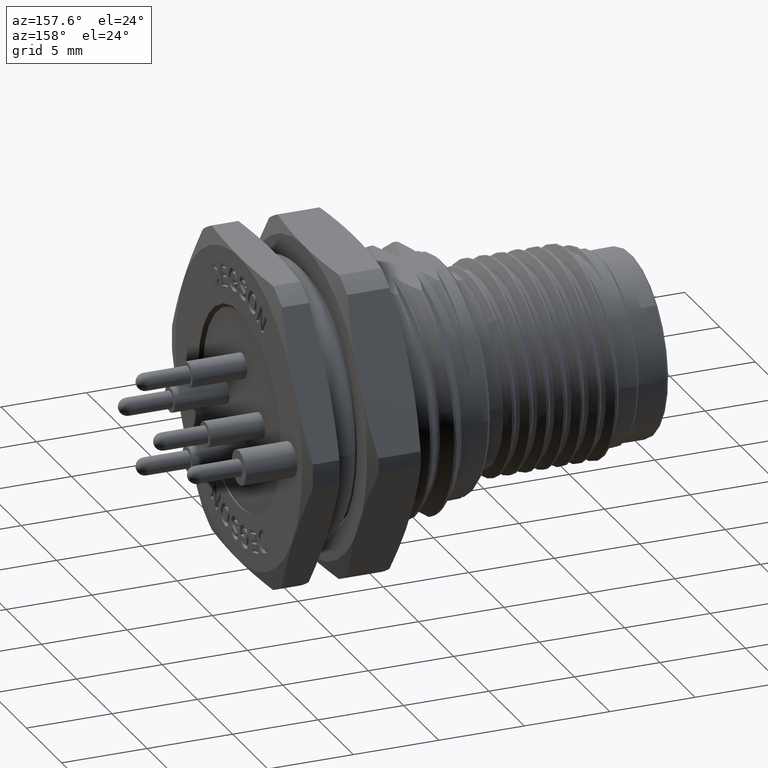
[diagram: clean part render]
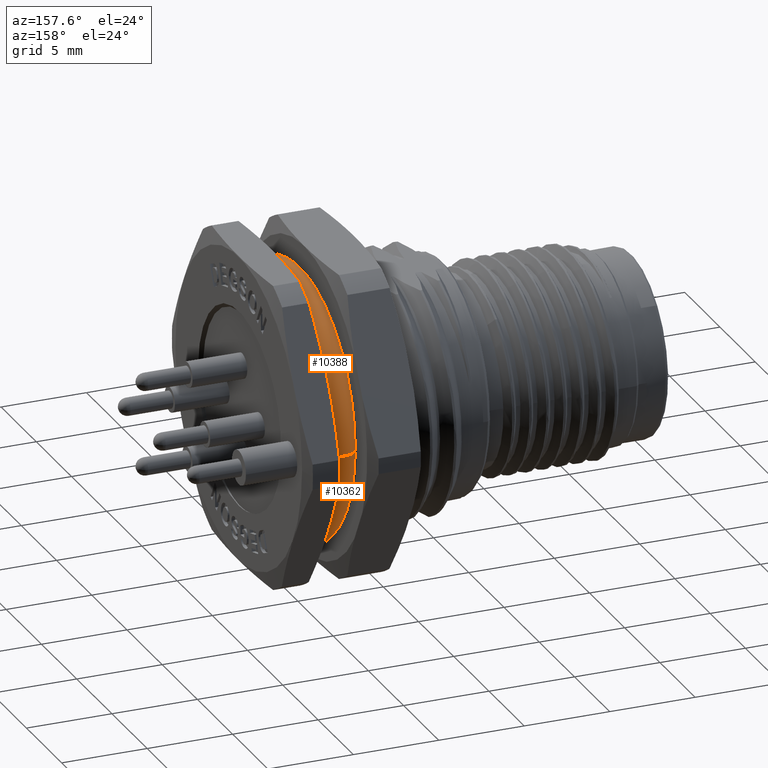
[diagram: same view with one multi-face feature highlighted, each face labeled with its STEP entity id]
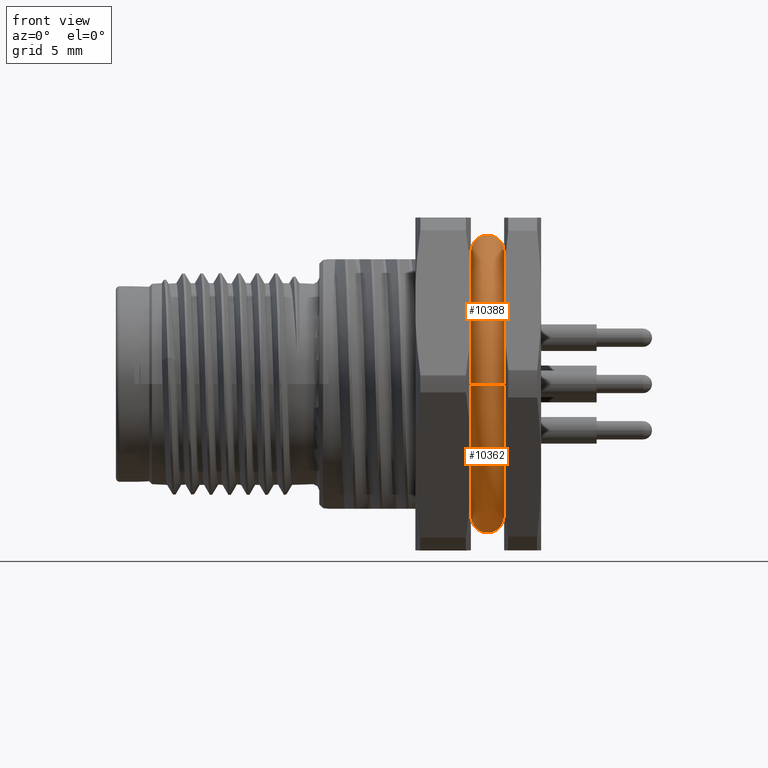
[diagram: same view with one multi-face feature highlighted, each face labeled with its STEP entity id]
A machine part, auxiliary view. The highlighted faces form ONE feature: a constant-radius fillet chain: 2 tangent blend faces with common blend radius 0.9 mm. The faces share edges in the B-rep.
A second angle (front view) of the same feature is appended — it is thin or edge-on in the first view.
Their STEP definitions:
[1] entity #10362 (Torus):
#1217=CARTESIAN_POINT('',(1.939495141735E1,1.886821974979E0,-6.995194330582E0));
#1218=CARTESIAN_POINT('',(1.939629274163E1,1.811637577507E0,-7.002413027099E0));
#1219=CARTESIAN_POINT('',(1.939830120900E1,1.659898438532E0,-7.016166733476E0));
#1220=CARTESIAN_POINT('',(1.939976461297E1,1.428174273904E0,-7.034532478388E0));
#1221=CARTESIAN_POINT('',(1.94E1,1.270942858521E0,-7.045137303689E0));
#1222=CARTESIAN_POINT('',(1.94E1,1.191638177538E0,-7.05E0));
#1228=CARTESIAN_POINT('',(1.94E1,-1.191638177538E0,-7.05E0));
#1229=CARTESIAN_POINT('',(1.94E1,-1.270947846835E0,-7.045136997822E0));
#1230=CARTESIAN_POINT('',(1.939976458063E1,-1.428185905819E0,
-7.034531644451E0));
#1231=CARTESIAN_POINT('',(1.939830108979E1,-1.659910069420E0,
-7.016165725879E0));
#1232=CARTESIAN_POINT('',(1.939629265278E1,-1.811642557270E0,
-7.002412548976E0));
#1233=CARTESIAN_POINT('',(1.939495141735E1,-1.886821974979E0,
-6.995194330582E0));
#1239=CARTESIAN_POINT('',(1.94E1,1.191638177538E0,-7.05E0));
#1240=CARTESIAN_POINT('',(1.94E1,1.093792610101E0,-7.028141567067E0));
#1241=CARTESIAN_POINT('',(1.939523487538E1,8.973142794674E-1,
-6.989207507105E0));
#1242=CARTESIAN_POINT('',(1.938279541400E1,5.992727677882E-1,
-6.947956635647E0));
#1243=CARTESIAN_POINT('',(1.937240712295E1,2.994464668695E-1,
-6.923988478896E0));
#1244=CARTESIAN_POINT('',(1.936849029006E1,-1.216062914402E-3,
-6.916224189577E0));
#1245=CARTESIAN_POINT('',(1.937246382952E1,-3.014437468358E-1,
-6.924106128268E0));
#1246=CARTESIAN_POINT('',(1.938284457149E1,-6.004052384102E-1,
-6.948098435124E0));
#1247=CARTESIAN_POINT('',(1.939524040001E1,-8.975637156334E-1,
-6.989262295405E0));
#1248=CARTESIAN_POINT('',(1.94E1,-1.093836259908E0,-7.028151318314E0));
#1249=CARTESIAN_POINT('',(1.94E1,-1.191638177538E0,-7.05E0));
#1255=CARTESIAN_POINT('',(1.85E1,-7.149996727772E0,-6.840529705493E-3));
#1256=DIRECTION('',(0.E0,9.567174413277E-4,-9.999995423458E-1));
#1257=DIRECTION('',(9.943904637276E-1,-1.057714300154E-1,-1.011934182015E-4));
#1258=AXIS2_PLACEMENT_3D('',#1255,#1256,#1257);
#1260=CARTESIAN_POINT('',(1.85E1,7.149996727772E0,6.840529705484E-3));
#1261=DIRECTION('',(0.E0,9.567174413264E-4,-9.999995423458E-1));
#1262=DIRECTION('',(-9.860132971833E-1,-1.666665903911E-1,-1.594529068878E-4));
#1263=AXIS2_PLACEMENT_3D('',#1260,#1261,#1262);
#1270=CARTESIAN_POINT('',(1.761258803254E1,0.E0,0.E0));
#1271=DIRECTION('',(-1.E0,0.E0,0.E0));
#1272=DIRECTION('',(0.E0,-2.648642316820E-1,-9.642857142857E-1));
#1273=AXIS2_PLACEMENT_3D('',#1270,#1271,#1272);
#1307=CARTESIAN_POINT('',(1.761258803254E1,-1.854049621774E0,-6.75E0));
#1308=CARTESIAN_POINT('',(1.762052666483E1,-1.676730163705E0,-6.75E0));
#1309=CARTESIAN_POINT('',(1.764187554393E1,-1.322630550401E0,-6.75E0));
#1310=CARTESIAN_POINT('',(1.767472572828E1,-7.873899715256E-1,-6.75E0));
#1311=CARTESIAN_POINT('',(1.769457723014E1,-2.621845809900E-1,-6.75E0));
#1312=CARTESIAN_POINT('',(1.769457114578E1,2.626373452856E-1,-6.75E0));
#1313=CARTESIAN_POINT('',(1.767468624453E1,7.881689601936E-1,-6.75E0));
#1314=CARTESIAN_POINT('',(1.764182309254E1,1.323417870903E0,-6.75E0));
#1315=CARTESIAN_POINT('',(1.762051204772E1,1.677056655398E0,-6.75E0));
#1316=CARTESIAN_POINT('',(1.761258803254E1,1.854049621774E0,-6.75E0));
#1844=CARTESIAN_POINT('',(1.761258803254E1,0.E0,0.E0));
#1845=DIRECTION('',(-1.E0,0.E0,0.E0));
#1846=DIRECTION('',(0.E0,9.999995423458E-1,9.567174413261E-4));
#1847=AXIS2_PLACEMENT_3D('',#1844,#1845,#1846);
#5485=CARTESIAN_POINT('',(1.939495141735E1,0.E0,0.E0));
#5486=DIRECTION('',(-1.E0,0.E0,0.E0));
#5487=DIRECTION('',(0.E0,9.999995423458E-1,9.567174413259E-4));
#5488=AXIS2_PLACEMENT_3D('',#5485,#5486,#5487);
#5545=CARTESIAN_POINT('',(1.939495141735E1,0.E0,0.E0));
#5546=DIRECTION('',(-1.E0,0.E0,0.E0));
#5547=DIRECTION('',(0.E0,-2.604239291436E-1,-9.654943692893E-1));
#5548=AXIS2_PLACEMENT_3D('',#5545,#5546,#5547);
#9449=VERTEX_POINT('',#1217);
#9450=VERTEX_POINT('',#1222);
#9451=VERTEX_POINT('',#1228);
#9452=VERTEX_POINT('',#1233);
#9453=CARTESIAN_POINT('',(1.939495141735E1,7.245191014786E0,6.931603781861E-3));
#9454=VERTEX_POINT('',#9453);
#9460=CARTESIAN_POINT('',(1.939495141735E1,-7.245191014786E0,
-6.931603781877E-3));
#9461=VERTEX_POINT('',#9460);
#9463=CARTESIAN_POINT('',(1.761258803254E1,6.999996796420E0,6.697022089282E-3));
#9465=VERTEX_POINT('',#9463);
#9466=CARTESIAN_POINT('',(1.761258803254E1,1.854049621774E0,-6.75E0));
#9467=VERTEX_POINT('',#9466);
#9468=CARTESIAN_POINT('',(1.761258803254E1,-6.999996796420E0,
-6.697022089294E-3));
#9470=VERTEX_POINT('',#9468);
#9472=CARTESIAN_POINT('',(1.761258803254E1,-1.854049621774E0,-6.75E0));
#9473=VERTEX_POINT('',#9472);
#10338=CARTESIAN_POINT('',(1.85E1,0.E0,0.E0));
#10339=DIRECTION('',(-1.E0,0.E0,0.E0));
#10340=DIRECTION('',(0.E0,-9.999995423458E-1,-9.567174413276E-4));
#10341=AXIS2_PLACEMENT_3D('',#10338,#10339,#10340);
#10342=TOROIDAL_SURFACE('',#10341,7.15E0,9.E-1);
#10344=ORIENTED_EDGE('',*,*,#10343,.F.);
#10346=ORIENTED_EDGE('',*,*,#10345,.T.);
#10348=ORIENTED_EDGE('',*,*,#10347,.F.);
#10350=ORIENTED_EDGE('',*,*,#10349,.T.);
#10352=ORIENTED_EDGE('',*,*,#10351,.F.);
#10354=ORIENTED_EDGE('',*,*,#10353,.F.);
#10355=ORIENTED_EDGE('',*,*,#10319,.F.);
#10356=ORIENTED_EDGE('',*,*,#10332,.F.);
#10357=ORIENTED_EDGE('',*,*,#10306,.F.);
#10359=ORIENTED_EDGE('',*,*,#10358,.F.);
#10360=EDGE_LOOP('',(#10344,#10346,#10348,#10350,#10352,#10354,#10355,#10356,
#10357,#10359));
#10361=FACE_OUTER_BOUND('',#10360,.F.);
#10362=ADVANCED_FACE('',(#10361),#10342,.T.);
#1223=B_SPLINE_CURVE_WITH_KNOTS('',3,(#1217,#1218,#1219,#1220,#1221,#1222),
.UNSPECIFIED.,.F.,.F.,(4,1,1,4),(0.E0,3.333333333333E-1,6.666666666667E-1,1.E0),
.UNSPECIFIED.);
#1234=B_SPLINE_CURVE_WITH_KNOTS('',3,(#1228,#1229,#1230,#1231,#1232,#1233),
.UNSPECIFIED.,.F.,.F.,(4,1,1,4),(0.E0,3.333333333333E-1,6.666666666667E-1,1.E0),
.UNSPECIFIED.);
#1250=B_SPLINE_CURVE_WITH_KNOTS('',3,(#1239,#1240,#1241,#1242,#1243,#1244,#1245,
#1246,#1247,#1248,#1249),.UNSPECIFIED.,.F.,.F.,(4,1,1,1,1,1,1,1,4),(0.E0,
1.25E-1,2.5E-1,3.75E-1,5.E-1,6.25E-1,7.5E-1,8.75E-1,1.E0),.UNSPECIFIED.);
#1259=CIRCLE('',#1258,9.E-1);
#1264=CIRCLE('',#1263,9.E-1);
#1274=CIRCLE('',#1273,7.E0);
#1317=B_SPLINE_CURVE_WITH_KNOTS('',3,(#1307,#1308,#1309,#1310,#1311,#1312,#1313,
#1314,#1315,#1316),.UNSPECIFIED.,.F.,.F.,(4,1,1,1,1,1,1,4),(0.E0,
1.428571428571E-1,2.857142857143E-1,4.285714285714E-1,5.714285714286E-1,
7.142857142857E-1,8.571428571429E-1,1.E0),.UNSPECIFIED.);
#1848=CIRCLE('',#1847,7.E0);
#5489=CIRCLE('',#5488,7.245194330580E0);
#5549=CIRCLE('',#5548,7.245194330580E0);
#10306=EDGE_CURVE('',#9449,#9450,#1223,.T.);
#10319=EDGE_CURVE('',#9451,#9452,#1234,.T.);
#10332=EDGE_CURVE('',#9450,#9451,#1250,.T.);
#10343=EDGE_CURVE('',#9465,#9454,#1264,.T.);
#10345=EDGE_CURVE('',#9465,#9467,#1848,.T.);
#10347=EDGE_CURVE('',#9473,#9467,#1317,.T.);
#10349=EDGE_CURVE('',#9473,#9470,#1274,.T.);
#10351=EDGE_CURVE('',#9461,#9470,#1259,.T.);
#10353=EDGE_CURVE('',#9452,#9461,#5549,.T.);
#10358=EDGE_CURVE('',#9454,#9449,#5489,.T.);
[2] entity #10388 (Torus):
#1255=CARTESIAN_POINT('',(1.85E1,-7.149996727772E0,-6.840529705493E-3));
#1256=DIRECTION('',(0.E0,9.567174413277E-4,-9.999995423458E-1));
#1257=DIRECTION('',(9.943904637276E-1,-1.057714300154E-1,-1.011934182015E-4));
#1258=AXIS2_PLACEMENT_3D('',#1255,#1256,#1257);
#1260=CARTESIAN_POINT('',(1.85E1,7.149996727772E0,6.840529705484E-3));
#1261=DIRECTION('',(0.E0,9.567174413264E-4,-9.999995423458E-1));
#1262=DIRECTION('',(-9.860132971833E-1,-1.666665903911E-1,-1.594529068878E-4));
#1263=AXIS2_PLACEMENT_3D('',#1260,#1261,#1262);
#1265=CARTESIAN_POINT('',(1.761258803254E1,0.E0,0.E0));
#1266=DIRECTION('',(-1.E0,0.E0,0.E0));
#1267=DIRECTION('',(0.E0,-9.999995423458E-1,-9.567174413277E-4));
#1268=AXIS2_PLACEMENT_3D('',#1265,#1266,#1267);
#1479=CARTESIAN_POINT('',(1.761258803254E1,1.854049621774E0,6.75E0));
#1480=CARTESIAN_POINT('',(1.762052666483E1,1.676730163705E0,6.75E0));
#1481=CARTESIAN_POINT('',(1.764187554393E1,1.322630550401E0,6.75E0));
#1482=CARTESIAN_POINT('',(1.767472572828E1,7.873899715256E-1,6.75E0));
#1483=CARTESIAN_POINT('',(1.769457723014E1,2.621845809900E-1,6.75E0));
#1484=CARTESIAN_POINT('',(1.769457114578E1,-2.626373452856E-1,6.75E0));
#1485=CARTESIAN_POINT('',(1.767468624453E1,-7.881689601936E-1,6.75E0));
#1486=CARTESIAN_POINT('',(1.764182309254E1,-1.323417870903E0,6.75E0));
#1487=CARTESIAN_POINT('',(1.762051204772E1,-1.677056655398E0,6.75E0));
#1488=CARTESIAN_POINT('',(1.761258803254E1,-1.854049621774E0,6.75E0));
#1839=CARTESIAN_POINT('',(1.761258803254E1,0.E0,0.E0));
#1840=DIRECTION('',(-1.E0,0.E0,0.E0));
#1841=DIRECTION('',(0.E0,2.648642316820E-1,9.642857142857E-1));
#1842=AXIS2_PLACEMENT_3D('',#1839,#1840,#1841);
#5496=CARTESIAN_POINT('',(1.939495141735E1,0.E0,0.E0));
#5497=DIRECTION('',(-1.E0,0.E0,0.E0));
#5498=DIRECTION('',(0.E0,2.604239291436E-1,9.654943692893E-1));
#5499=AXIS2_PLACEMENT_3D('',#5496,#5497,#5498);
#5501=CARTESIAN_POINT('',(1.939495141735E1,-1.886821974979E0,6.995194330582E0));
#5502=CARTESIAN_POINT('',(1.939629274163E1,-1.811637577507E0,7.002413027099E0));
#5503=CARTESIAN_POINT('',(1.939830120900E1,-1.659898438532E0,7.016166733476E0));
#5504=CARTESIAN_POINT('',(1.939976461297E1,-1.428174273904E0,7.034532478388E0));
#5505=CARTESIAN_POINT('',(1.94E1,-1.270942858521E0,7.045137303689E0));
#5506=CARTESIAN_POINT('',(1.94E1,-1.191638177538E0,7.05E0));
#5512=CARTESIAN_POINT('',(1.94E1,1.191638177538E0,7.05E0));
#5513=CARTESIAN_POINT('',(1.94E1,1.270947846835E0,7.045136997822E0));
#5514=CARTESIAN_POINT('',(1.939976458063E1,1.428185905819E0,7.034531644451E0));
#5515=CARTESIAN_POINT('',(1.939830108979E1,1.659910069420E0,7.016165725879E0));
#5516=CARTESIAN_POINT('',(1.939629265278E1,1.811642557270E0,7.002412548976E0));
#5517=CARTESIAN_POINT('',(1.939495141735E1,1.886821974979E0,6.995194330582E0));
#5529=CARTESIAN_POINT('',(1.94E1,-1.191638177538E0,7.05E0));
#5530=CARTESIAN_POINT('',(1.94E1,-1.093792610101E0,7.028141567067E0));
#5531=CARTESIAN_POINT('',(1.939523487538E1,-8.973142794674E-1,
6.989207507105E0));
#5532=CARTESIAN_POINT('',(1.938279541400E1,-5.992727677882E-1,
6.947956635647E0));
#5533=CARTESIAN_POINT('',(1.937240712295E1,-2.994464668695E-1,
6.923988478896E0));
#5534=CARTESIAN_POINT('',(1.936849029006E1,1.216062914403E-3,6.916224189577E0));
#5535=CARTESIAN_POINT('',(1.937246382952E1,3.014437468358E-1,6.924106128268E0));
#5536=CARTESIAN_POINT('',(1.938284457149E1,6.004052384102E-1,6.948098435124E0));
#5537=CARTESIAN_POINT('',(1.939524040001E1,8.975637156335E-1,6.989262295405E0));
#5538=CARTESIAN_POINT('',(1.94E1,1.093836259908E0,7.028151318314E0));
#5539=CARTESIAN_POINT('',(1.94E1,1.191638177538E0,7.05E0));
#5550=CARTESIAN_POINT('',(1.939495141735E1,0.E0,0.E0));
#5551=DIRECTION('',(-1.E0,0.E0,0.E0));
#5552=DIRECTION('',(0.E0,-9.999995423458E-1,-9.567174413280E-4));
#5553=AXIS2_PLACEMENT_3D('',#5550,#5551,#5552);
#9453=CARTESIAN_POINT('',(1.939495141735E1,7.245191014786E0,6.931603781861E-3));
#9454=VERTEX_POINT('',#9453);
#9455=CARTESIAN_POINT('',(1.939495141735E1,1.886821974979E0,6.995194330582E0));
#9456=VERTEX_POINT('',#9455);
#9457=VERTEX_POINT('',#5501);
#9458=VERTEX_POINT('',#5506);
#9459=VERTEX_POINT('',#5512);
#9460=CARTESIAN_POINT('',(1.939495141735E1,-7.245191014786E0,
-6.931603781877E-3));
#9461=VERTEX_POINT('',#9460);
#9462=CARTESIAN_POINT('',(1.761258803254E1,1.854049621774E0,6.75E0));
#9463=CARTESIAN_POINT('',(1.761258803254E1,6.999996796420E0,6.697022089282E-3));
#9464=VERTEX_POINT('',#9462);
#9465=VERTEX_POINT('',#9463);
#9468=CARTESIAN_POINT('',(1.761258803254E1,-6.999996796420E0,
-6.697022089294E-3));
#9469=CARTESIAN_POINT('',(1.761258803254E1,-1.854049621774E0,6.75E0));
#9470=VERTEX_POINT('',#9468);
#9471=VERTEX_POINT('',#9469);
#10363=CARTESIAN_POINT('',(1.85E1,0.E0,0.E0));
#10364=DIRECTION('',(-1.E0,0.E0,0.E0));
#10365=DIRECTION('',(0.E0,-9.999995423458E-1,-9.567174413276E-4));
#10366=AXIS2_PLACEMENT_3D('',#10363,#10364,#10365);
#10367=TOROIDAL_SURFACE('',#10366,7.15E0,9.E-1);
#10368=ORIENTED_EDGE('',*,*,#10351,.T.);
#10370=ORIENTED_EDGE('',*,*,#10369,.T.);
#10372=ORIENTED_EDGE('',*,*,#10371,.F.);
#10374=ORIENTED_EDGE('',*,*,#10373,.T.);
#10375=ORIENTED_EDGE('',*,*,#10343,.T.);
#10377=ORIENTED_EDGE('',*,*,#10376,.F.);
#10379=ORIENTED_EDGE('',*,*,#10378,.F.);
#10381=ORIENTED_EDGE('',*,*,#10380,.F.);
#10383=ORIENTED_EDGE('',*,*,#10382,.F.);
#10385=ORIENTED_EDGE('',*,*,#10384,.F.);
#10386=EDGE_LOOP('',(#10368,#10370,#10372,#10374,#10375,#10377,#10379,#10381,
#10383,#10385));
#10387=FACE_OUTER_BOUND('',#10386,.F.);
#10388=ADVANCED_FACE('',(#10387),#10367,.T.);
#1259=CIRCLE('',#1258,9.E-1);
#1264=CIRCLE('',#1263,9.E-1);
#1269=CIRCLE('',#1268,7.E0);
#1489=B_SPLINE_CURVE_WITH_KNOTS('',3,(#1479,#1480,#1481,#1482,#1483,#1484,#1485,
#1486,#1487,#1488),.UNSPECIFIED.,.F.,.F.,(4,1,1,1,1,1,1,4),(0.E0,
1.428571428571E-1,2.857142857143E-1,4.285714285714E-1,5.714285714286E-1,
7.142857142857E-1,8.571428571429E-1,1.E0),.UNSPECIFIED.);
#1843=CIRCLE('',#1842,7.E0);
#5500=CIRCLE('',#5499,7.245194330580E0);
#5507=B_SPLINE_CURVE_WITH_KNOTS('',3,(#5501,#5502,#5503,#5504,#5505,#5506),
.UNSPECIFIED.,.F.,.F.,(4,1,1,4),(0.E0,3.333333333333E-1,6.666666666667E-1,1.E0),
.UNSPECIFIED.);
#5518=B_SPLINE_CURVE_WITH_KNOTS('',3,(#5512,#5513,#5514,#5515,#5516,#5517),
.UNSPECIFIED.,.F.,.F.,(4,1,1,4),(0.E0,3.333333333333E-1,6.666666666667E-1,1.E0),
.UNSPECIFIED.);
#5540=B_SPLINE_CURVE_WITH_KNOTS('',3,(#5529,#5530,#5531,#5532,#5533,#5534,#5535,
#5536,#5537,#5538,#5539),.UNSPECIFIED.,.F.,.F.,(4,1,1,1,1,1,1,1,4),(0.E0,
1.25E-1,2.5E-1,3.75E-1,5.E-1,6.25E-1,7.5E-1,8.75E-1,1.E0),.UNSPECIFIED.);
#5554=CIRCLE('',#5553,7.245194330580E0);
#10343=EDGE_CURVE('',#9465,#9454,#1264,.T.);
#10351=EDGE_CURVE('',#9461,#9470,#1259,.T.);
#10369=EDGE_CURVE('',#9470,#9471,#1269,.T.);
#10371=EDGE_CURVE('',#9464,#9471,#1489,.T.);
#10373=EDGE_CURVE('',#9464,#9465,#1843,.T.);
#10376=EDGE_CURVE('',#9456,#9454,#5500,.T.);
#10378=EDGE_CURVE('',#9459,#9456,#5518,.T.);
#10380=EDGE_CURVE('',#9458,#9459,#5540,.T.);
#10382=EDGE_CURVE('',#9457,#9458,#5507,.T.);
#10384=EDGE_CURVE('',#9461,#9457,#5554,.T.);